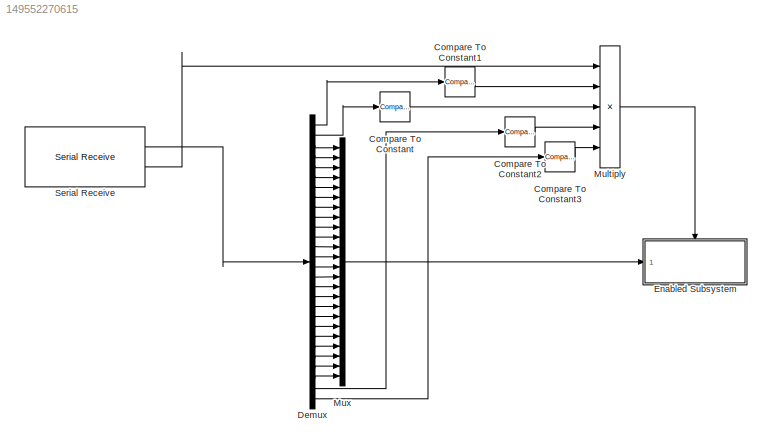
MODEL slx_149552270615
KIND model
CONFIG AbsTol = auto
CONFIG EnableMultiTasking = on
CONFIG FixedStep = 0.01
CONFIG MaxStep = auto
CONFIG MinStep = auto
CONFIG RelTol = 1e-3
CONFIG SampleTimeConstraint = Unconstrained
CONFIG Solver = FixedStepAuto
CONFIG SolverName = FixedStepAuto
CONFIG StartTime = 0.0
CONFIG StopTime = 1000
BLOCK [Reference] Compare To Constant  REF=simulink/Logic and Bit
Operations/Compare
To Constant
  Ports = [1, 1]
  SourceBlock = simulink/Logic and Bit\nOperations/Compare\nTo Constant
  SourceProductBaseCode = SL
  SourceType = Compare To Constant
BLOCK [Reference] Compare To Constant1  REF=simulink/Logic and Bit
Operations/Compare
To Constant
  Ports = [1, 1]
  SourceBlock = simulink/Logic and Bit\nOperations/Compare\nTo Constant
  SourceProductBaseCode = SL
  SourceType = Compare To Constant
BLOCK [Reference] Compare To Constant2  REF=simulink/Logic and Bit
Operations/Compare
To Constant
  Ports = [1, 1]
  SourceBlock = simulink/Logic and Bit\nOperations/Compare\nTo Constant
  SourceProductBaseCode = SL
  SourceType = Compare To Constant
BLOCK [Reference] Compare To Constant3  REF=simulink/Logic and Bit
Operations/Compare
To Constant
  Ports = [1, 1]
  SourceBlock = simulink/Logic and Bit\nOperations/Compare\nTo Constant
  SourceProductBaseCode = SL
  SourceType = Compare To Constant
BLOCK [Demux] Demux
  Outputs = 28
  Ports = [1, 28]
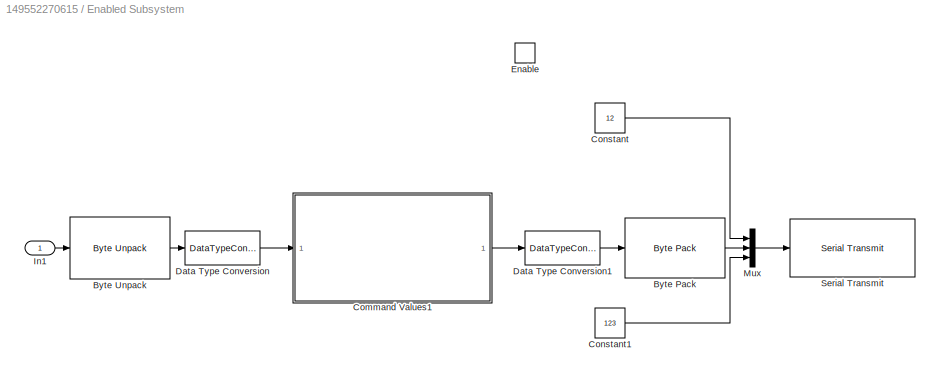
BLOCK [SubSystem] Enabled Subsystem
  Ports = [1, 0, 1]
  RequestExecContextInheritance = off
  TreatAsAtomicUnit = on
BLOCK [Reference] Enabled Subsystem/Byte Pack  REF=svdutilitieslib/Byte Pack
  Ports = [1, 1]
  SourceBlock = svdutilitieslib/Byte Pack
  SourceProductBaseCode = ARDUINO,ML_ARDUINO,ECCORTEXA,ECCORTEXR,SC_BEAGLEBONE_BLUE,EC_FREEDOM_BOARD,EC_FRDM_K64F,INTEL_BLOCKSET,MICROBIT,NUCLEO,PX4AUTOPILOTS,RASPPIIO,STMICRODIS,TIC2000,XILINX_BLOCKSET
  SourceType = Byte pack
BLOCK [Reference] Enabled Subsystem/Byte Unpack  REF=svdutilitieslib/Byte Unpack
  Ports = [1, 1]
  SourceBlock = svdutilitieslib/Byte Unpack
  SourceProductBaseCode = ARDUINO,ML_ARDUINO,ECCORTEXA,ECCORTEXR,SC_BEAGLEBONE_BLUE,EC_FREEDOM_BOARD,EC_FRDM_K64F,INTEL_BLOCKSET,MICROBIT,NUCLEO,PX4AUTOPILOTS,RASPPIIO,STMICRODIS,TIC2000,XILINX_BLOCKSET
  SourceType = Byte Unpack
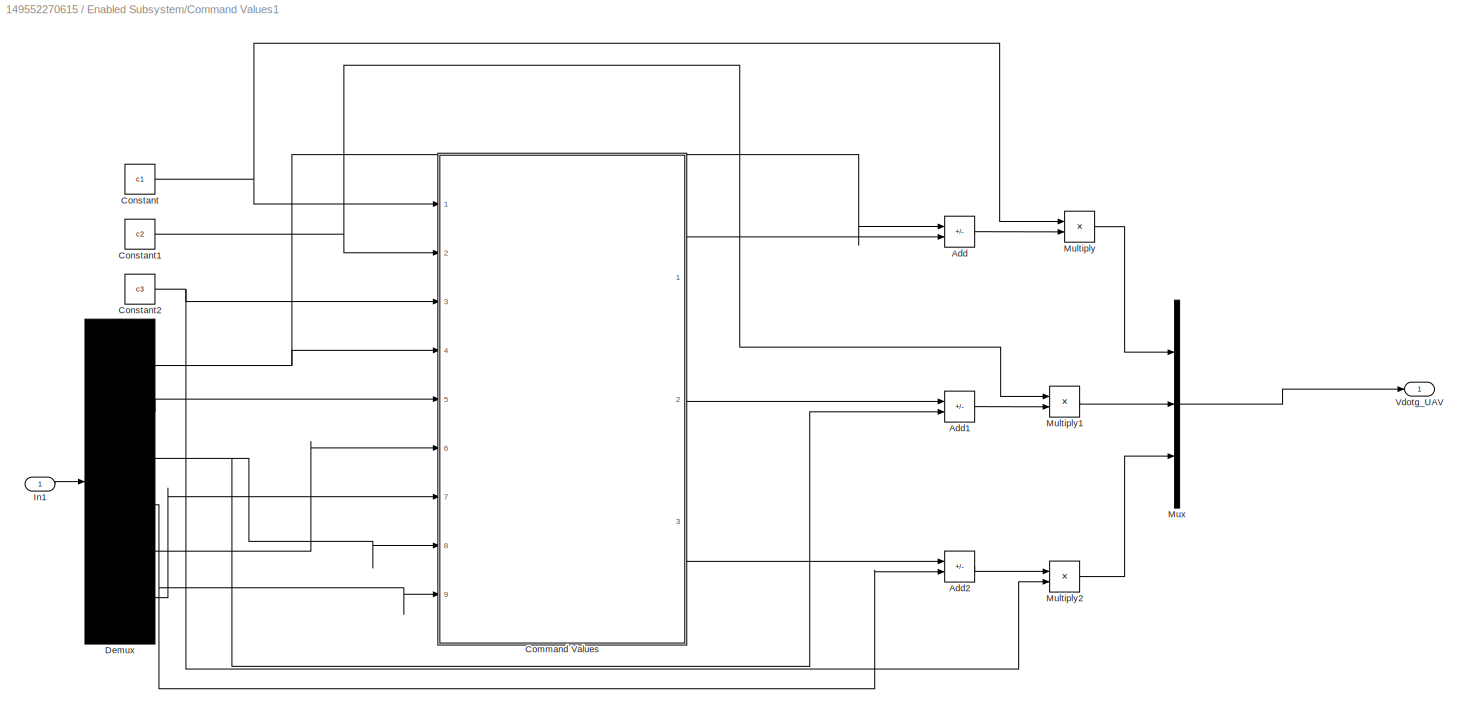
BLOCK [SubSystem] Enabled Subsystem/Command Values1
  NameLocation = top
  Ports = [1, 1]
  RequestExecContextInheritance = off
BLOCK [Sum] Enabled Subsystem/Command Values1/Add
  IconShape = rectangular
  Inputs = -+
  Ports = [2, 1]
BLOCK [Sum] Enabled Subsystem/Command Values1/Add1
  IconShape = rectangular
  Inputs = +-
  Ports = [2, 1]
BLOCK [Sum] Enabled Subsystem/Command Values1/Add2
  IconShape = rectangular
  Inputs = +-
  Ports = [2, 1]
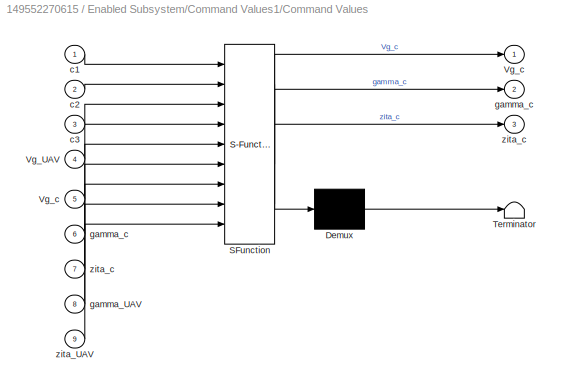
BLOCK [SubSystem] Enabled Subsystem/Command Values1/Command Values
  ErrorFcn = Stateflow.Translate.translate
  PermitHierarchicalResolution = ExplicitOnly
  Ports = [9, 3]
  RequestExecContextInheritance = off
  SFBlockType = MATLAB Function
  TreatAsAtomicUnit = on
BLOCK [Demux] Enabled Subsystem/Command Values1/Command Values/ Demux 
  Outputs = 1
  Ports = [1, 1]
BLOCK [S-Function] Enabled Subsystem/Command Values1/Command Values/ SFunction 
  EnableBusSupport = off
  FunctionName = sf_sfun
  PortCounts = [9 4]
  Ports = [9, 4]
  SFcnIsStateOwnerBlock = off
  SFunctionDeploymentMode = off
  Tag = Stateflow S-Function 1
BLOCK [Terminator] Enabled Subsystem/Command Values1/Command Values/ Terminator 
BLOCK [Inport] Enabled Subsystem/Command Values1/Command Values/Vg_UAV
  Port = 4
BLOCK [Outport] Enabled Subsystem/Command Values1/Command Values/Vg_c
  VectorParamsAs1DForOutWhenUnconnected = off
BLOCK [Inport] Enabled Subsystem/Command Values1/Command Values/Vg_c 
  Port = 5
BLOCK [Inport] Enabled Subsystem/Command Values1/Command Values/c1
BLOCK [Inport] Enabled Subsystem/Command Values1/Command Values/c2
  Port = 2
BLOCK [Inport] Enabled Subsystem/Command Values1/Command Values/c3
  Port = 3
BLOCK [Inport] Enabled Subsystem/Command Values1/Command Values/gamma_UAV
  Port = 8
BLOCK [Outport] Enabled Subsystem/Command Values1/Command Values/gamma_c
  Port = 2
  VectorParamsAs1DForOutWhenUnconnected = off
BLOCK [Inport] Enabled Subsystem/Command Values1/Command Values/gamma_c 
  Port = 6
BLOCK [Inport] Enabled Subsystem/Command Values1/Command Values/zita_UAV
  Port = 9
BLOCK [Outport] Enabled Subsystem/Command Values1/Command Values/zita_c
  Port = 3
  VectorParamsAs1DForOutWhenUnconnected = off
BLOCK [Inport] Enabled Subsystem/Command Values1/Command Values/zita_c 
  Port = 7
BLOCK [Constant] Enabled Subsystem/Command Values1/Constant
  Value = c1
BLOCK [Constant] Enabled Subsystem/Command Values1/Constant1
  Value = c2
BLOCK [Constant] Enabled Subsystem/Command Values1/Constant2
  Value = c3
BLOCK [Demux] Enabled Subsystem/Command Values1/Demux
  Outputs = 6
  Ports = [1, 6]
BLOCK [Inport] Enabled Subsystem/Command Values1/In1
BLOCK [Product] Enabled Subsystem/Command Values1/Multiply
  Ports = [2, 1]
BLOCK [Product] Enabled Subsystem/Command Values1/Multiply1
  Ports = [2, 1]
BLOCK [Product] Enabled Subsystem/Command Values1/Multiply2
  Ports = [2, 1]
BLOCK [Mux] Enabled Subsystem/Command Values1/Mux
  DisplayOption = bar
  Inputs = 3
  Ports = [3, 1]
BLOCK [Outport] Enabled Subsystem/Command Values1/Vdotg_UAV
  VectorParamsAs1DForOutWhenUnconnected = off
BLOCK [Constant] Enabled Subsystem/Constant
  OutDataTypeStr = uint8
  Value = 12
BLOCK [Constant] Enabled Subsystem/Constant1
  OutDataTypeStr = uint8
  Value = 123
BLOCK [DataTypeConversion] Enabled Subsystem/Data Type Conversion
  OutDataTypeStr = double
  RndMeth = Floor
  SaturateOnIntegerOverflow = off
BLOCK [DataTypeConversion] Enabled Subsystem/Data Type Conversion1
  OutDataTypeStr = single
  RndMeth = Floor
  SaturateOnIntegerOverflow = off
BLOCK [EnablePort] Enabled Subsystem/Enable
  Ports = []
BLOCK [Inport] Enabled Subsystem/In1
BLOCK [Mux] Enabled Subsystem/Mux
  DisplayOption = bar
  Inputs = 3
  Ports = [3, 1]
BLOCK [Reference] Enabled Subsystem/Serial Transmit  REF=arduinolib/Serial Transmit
  Ports = [1]
  SourceBlock = arduinolib/Serial Transmit
  SourceProductBaseCode = ARDUINO
  SourceType = Arduino Serial Transmit
BLOCK [Product] Multiply
  Inputs = 5
  Ports = [5, 1]
BLOCK [Mux] Mux
  DisplayOption = bar
  Inputs = 24
  Ports = [24, 1]
BLOCK [Reference] Serial Receive  REF=arduinolib/Serial Receive
  Ports = [0, 2]
  SourceBlock = arduinolib/Serial Receive
  SourceProductBaseCode = ARDUINO
  SourceType = Arduino Serial Receive
LINE Compare To Constant1:1 -> Multiply:2
LINE Compare To Constant2:1 -> Multiply:4
LINE Compare To Constant3:1 -> Multiply:5
LINE Compare To Constant:1 -> Multiply:3
LINE Demux:1 -> Compare To Constant1:1
LINE Demux:10 -> Mux:8
LINE Demux:11 -> Mux:9
LINE Demux:12 -> Mux:10
LINE Demux:13 -> Mux:11
LINE Demux:14 -> Mux:12
LINE Demux:15 -> Mux:13
LINE Demux:16 -> Mux:14
LINE Demux:17 -> Mux:15
LINE Demux:18 -> Mux:16
LINE Demux:19 -> Mux:17
LINE Demux:2 -> Compare To Constant:1
LINE Demux:20 -> Mux:18
LINE Demux:21 -> Mux:19
LINE Demux:22 -> Mux:20
LINE Demux:23 -> Mux:21
LINE Demux:24 -> Mux:22
LINE Demux:25 -> Mux:23
LINE Demux:26 -> Mux:24
LINE Demux:27 -> Compare To Constant2:1
LINE Demux:28 -> Compare To Constant3:1
LINE Demux:3 -> Mux:1
LINE Demux:4 -> Mux:2
LINE Demux:5 -> Mux:3
LINE Demux:6 -> Mux:4
LINE Demux:7 -> Mux:5
LINE Demux:8 -> Mux:6
LINE Demux:9 -> Mux:7
LINE Enabled Subsystem/Byte Pack:1 -> Enabled Subsystem/Mux:2
LINE Enabled Subsystem/Byte Unpack:1 -> Enabled Subsystem/Data Type Conversion:1
LINE Enabled Subsystem/Command Values1/Add1:1 -> Enabled Subsystem/Command Values1/Multiply1:2
LINE Enabled Subsystem/Command Values1/Add2:1 -> Enabled Subsystem/Command Values1/Multiply2:1
LINE Enabled Subsystem/Command Values1/Add:1 -> Enabled Subsystem/Command Values1/Multiply:2
LINE Enabled Subsystem/Command Values1/Command Values:1 -> Enabled Subsystem/Command Values1/Add:2
LINE Enabled Subsystem/Command Values1/Command Values:2 -> Enabled Subsystem/Command Values1/Add1:1
LINE Enabled Subsystem/Command Values1/Command Values:3 -> Enabled Subsystem/Command Values1/Add2:1
NET Enabled Subsystem/Command Values1/Constant1:1 -> Enabled Subsystem/Command Values1/Command Values:2, Enabled Subsystem/Command Values1/Multiply1:1
NET Enabled Subsystem/Command Values1/Constant2:1 -> Enabled Subsystem/Command Values1/Command Values:3, Enabled Subsystem/Command Values1/Multiply2:2
NET Enabled Subsystem/Command Values1/Constant:1 -> Enabled Subsystem/Command Values1/Command Values:1, Enabled Subsystem/Command Values1/Multiply:1
NET Enabled Subsystem/Command Values1/Demux:1 -> Enabled Subsystem/Command Values1/Add:1, Enabled Subsystem/Command Values1/Command Values:4
LINE Enabled Subsystem/Command Values1/Demux:2 -> Enabled Subsystem/Command Values1/Command Values:5
NET Enabled Subsystem/Command Values1/Demux:3 -> Enabled Subsystem/Command Values1/Add1:2, Enabled Subsystem/Command Values1/Command Values:8
NET Enabled Subsystem/Command Values1/Demux:4 -> Enabled Subsystem/Command Values1/Add2:2, Enabled Subsystem/Command Values1/Command Values:9
LINE Enabled Subsystem/Command Values1/Demux:5 -> Enabled Subsystem/Command Values1/Command Values:6
LINE Enabled Subsystem/Command Values1/Demux:6 -> Enabled Subsystem/Command Values1/Command Values:7
LINE Enabled Subsystem/Command Values1/In1:1 -> Enabled Subsystem/Command Values1/Demux:1
LINE Enabled Subsystem/Command Values1/Multiply1:1 -> Enabled Subsystem/Command Values1/Mux:2
LINE Enabled Subsystem/Command Values1/Multiply2:1 -> Enabled Subsystem/Command Values1/Mux:3
LINE Enabled Subsystem/Command Values1/Multiply:1 -> Enabled Subsystem/Command Values1/Mux:1
LINE Enabled Subsystem/Command Values1/Mux:1 -> Enabled Subsystem/Command Values1/Vdotg_UAV:1
LINE Enabled Subsystem/Command Values1:1 -> Enabled Subsystem/Data Type Conversion1:1
LINE Enabled Subsystem/Constant1:1 -> Enabled Subsystem/Mux:3
LINE Enabled Subsystem/Constant:1 -> Enabled Subsystem/Mux:1
LINE Enabled Subsystem/Data Type Conversion1:1 -> Enabled Subsystem/Byte Pack:1
LINE Enabled Subsystem/Data Type Conversion:1 -> Enabled Subsystem/Command Values1:1
LINE Enabled Subsystem/In1:1 -> Enabled Subsystem/Byte Unpack:1
LINE Enabled Subsystem/Mux:1 -> Enabled Subsystem/Serial Transmit:1
LINE Multiply:1 -> Enabled Subsystem:enable
LINE Mux:1 -> Enabled Subsystem:1
LINE Serial Receive:1 -> Demux:1
LINE Serial Receive:2 -> Multiply:1
note: NET lines group one-source signal fan-out (src -> all destinations, sorted); 1:1 wires keep LINE
CHART Enabled
Subsystem/Command Values1/Command Values states=1 transitions=1
  STATE_LABEL 'eML_blk_kernel()'
  STATE_LABEL 'SCRIPT:\nfunction [Vg_c,gamma_c,zita_c] = fcn(c1,c2,c3,Vg_UAV,Vg_c,gamma_c,zita_c,gamma_UAV,zita_UAV)\n\nVg_c = Vg_UAV - (1/c1)*(Vg_c);\ngamma_c = gamma_UAV - (1/(c2*Vg_UAV))*(gamma_c);\nzita_c = zita_UAV - (1/c3)*zita_c;'
CHART  states=0 transitions=0
